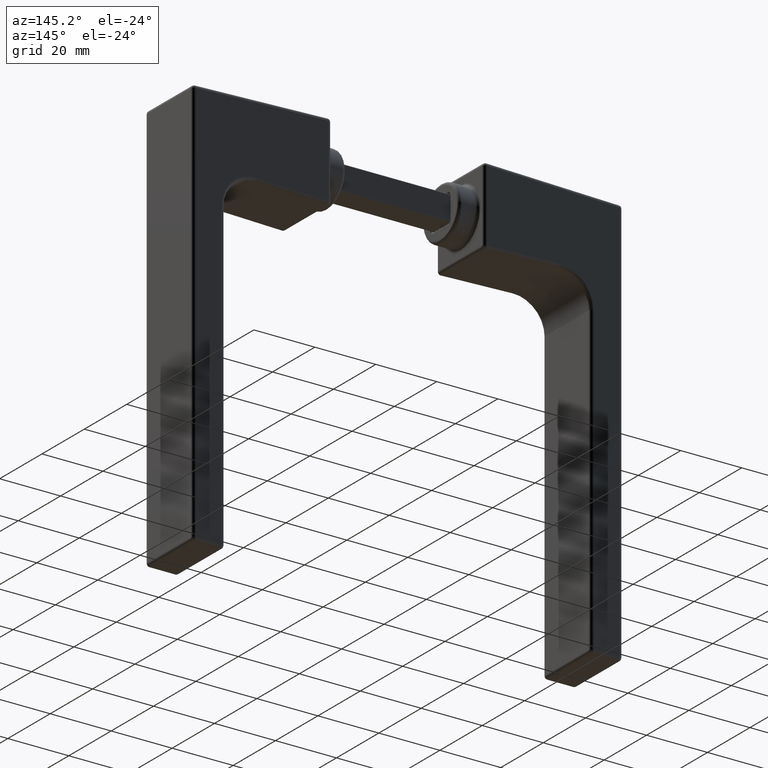
[diagram: clean part render]
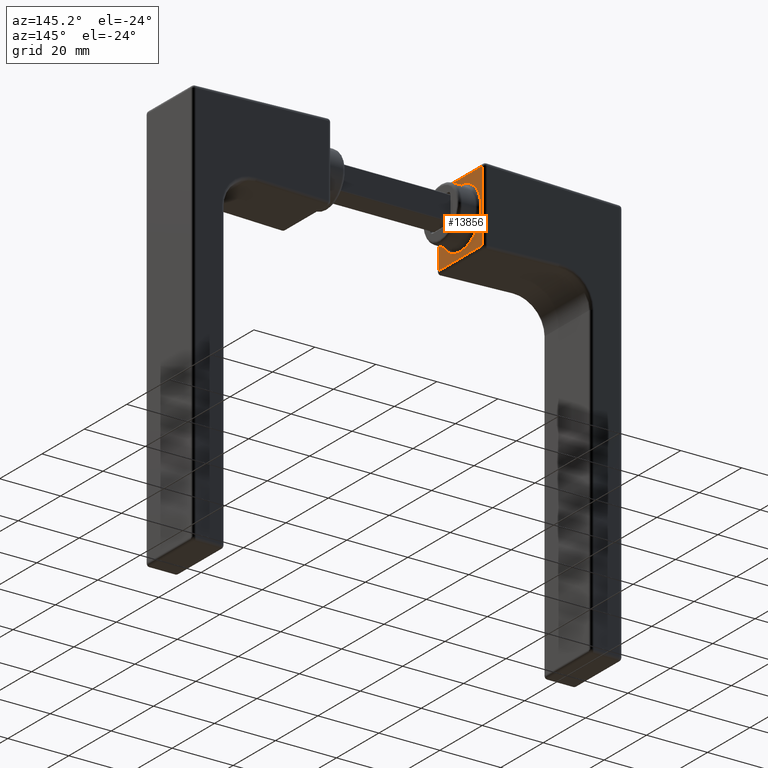
[diagram: same view with one face highlighted and labeled with its STEP entity id]
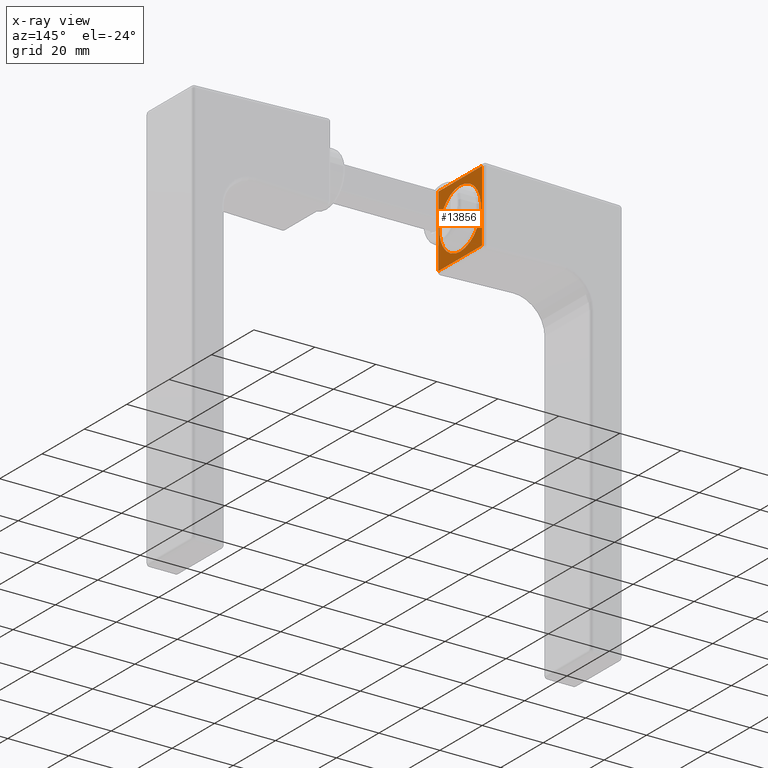
[diagram: x-ray of the same camera — body ghosted, the highlighted face saturated]
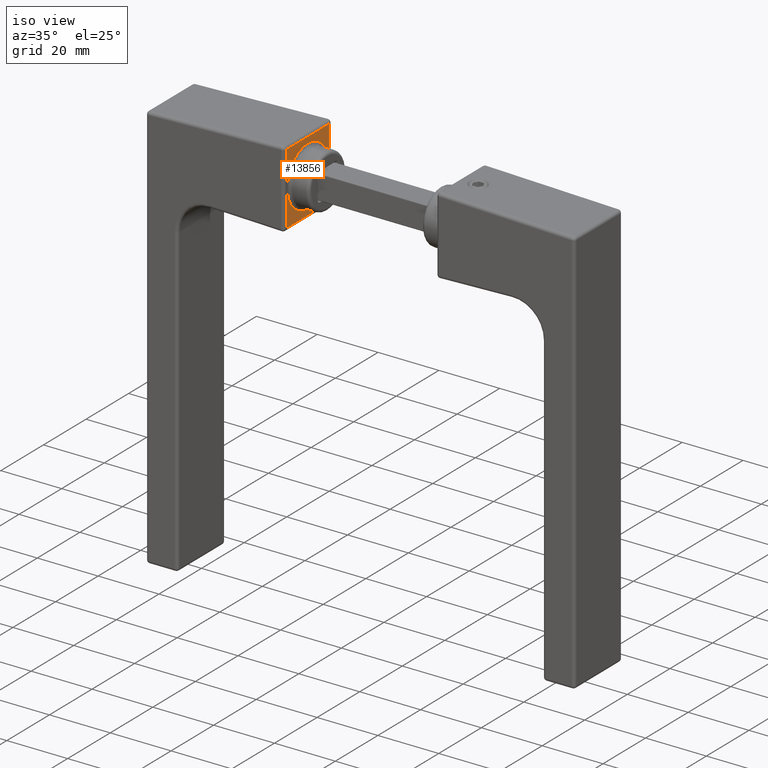
[diagram: same view with one face highlighted and labeled with its STEP entity id]
A machine part, auxiliary view. The second image highlights one B-rep face of the part: STEP entity #13856.
The next image is the same camera in x-ray: the body ghosted, the highlighted face saturated — about 0% of this face is hidden behind the body in this view.
A second angle (iso view) of the same face is appended — the face is thin or edge-on in the first view.
In plain terms, the highlighted planar face has unit normal (-1, 0, 0).
Its self-contained STEP definition (entity closure, byte-faithful):
#159 = DIRECTION ( 'NONE',  ( -1.000000000000000000, 0.000000000000000000, 0.000000000000000000 ) ) ;
#242 = EDGE_CURVE ( 'NONE', #12637, #14758, #7716, .T. ) ;
#309 = DIRECTION ( 'NONE',  ( 0.000000000000000000, 0.000000000000000000, 1.000000000000000000 ) ) ;
#684 = EDGE_CURVE ( 'NONE', #943, #943, #6579, .T. ) ;
#819 = CARTESIAN_POINT ( 'NONE',  ( 4.987329993433320396E-15, 0.000000000000000000, 0.000000000000000000 ) ) ;
#943 = VERTEX_POINT ( 'NONE', #3148 ) ;
#2151 = DIRECTION ( 'NONE',  ( -0.000000000000000000, 1.000000000000000000, -0.000000000000000000 ) ) ;
#2186 = DIRECTION ( 'NONE',  ( -0.000000000000000000, -0.000000000000000000, 1.000000000000000000 ) ) ;
#2252 = VECTOR ( 'NONE', #10289, 1000.000000000000000 ) ;
#2592 = VERTEX_POINT ( 'NONE', #10943 ) ;
#2711 = EDGE_CURVE ( 'NONE', #7563, #2592, #8607, .T. ) ;
#3148 = CARTESIAN_POINT ( 'NONE',  ( 4.987329993433320396E-15, 0.000000000000000000, 9.750000000000001776 ) ) ;
#3389 = CARTESIAN_POINT ( 'NONE',  ( 4.711518916537150582E-15, 11.25000000000000000, 11.71917024226190307 ) ) ;
#3978 = ORIENTED_EDGE ( 'NONE', *, *, #10625, .T. ) ;
#4559 = CARTESIAN_POINT ( 'NONE',  ( 4.711518916537150582E-15, 10.24999999999999822, -11.71917024226190307 ) ) ;
#4560 = FACE_BOUND ( 'NONE', #9770, .T. ) ;
#4606 = DIRECTION ( 'NONE',  ( 0.000000000000000000, -1.000000000000000000, 0.000000000000000000 ) ) ;
#4657 = ORIENTED_EDGE ( 'NONE', *, *, #6442, .T. ) ;
#4661 = VECTOR ( 'NONE', #4606, 1000.000000000000000 ) ;
#4868 = CARTESIAN_POINT ( 'NONE',  ( 4.711518916537150582E-15, -10.24999999999999822, -11.71917024226190307 ) ) ;
#5036 = LINE ( 'NONE', #3389, #4661 ) ;
#5213 = VECTOR ( 'NONE', #2186, 1000.000000000000000 ) ;
#5282 = ORIENTED_EDGE ( 'NONE', *, *, #242, .T. ) ;
#5406 = ORIENTED_EDGE ( 'NONE', *, *, #2711, .T. ) ;
#6442 = EDGE_CURVE ( 'NONE', #2592, #12637, #5036, .T. ) ;
#6444 = FACE_OUTER_BOUND ( 'NONE', #14477, .T. ) ;
#6579 = CIRCLE ( 'NONE', #11264, 9.750000000000001776 ) ;
#6647 = CARTESIAN_POINT ( 'NONE',  ( 4.711518916537150582E-15, -10.24999999999999822, -12.75000000000000178 ) ) ;
#6945 = CARTESIAN_POINT ( 'NONE',  ( 4.711518916537150582E-15, 11.25000000000000000, -11.71917024226190307 ) ) ;
#7556 = PLANE ( 'NONE',  #8438 ) ;
#7563 = VERTEX_POINT ( 'NONE', #4559 ) ;
#7716 = LINE ( 'NONE', #6647, #2252 ) ;
#8438 = AXIS2_PLACEMENT_3D ( 'NONE', #9919, #159, #309 ) ;
#8607 = LINE ( 'NONE', #14046, #5213 ) ;
#9081 = DIRECTION ( 'NONE',  ( 0.000000000000000000, 0.000000000000000000, 1.000000000000000000 ) ) ;
#9770 = EDGE_LOOP ( 'NONE', ( #14069 ) ) ;
#9919 = CARTESIAN_POINT ( 'NONE',  ( 4.711518916537150582E-15, 11.25000000000000000, -12.75000000000000178 ) ) ;
#10289 = DIRECTION ( 'NONE',  ( 0.000000000000000000, 0.000000000000000000, -1.000000000000000000 ) ) ;
#10625 = EDGE_CURVE ( 'NONE', #14758, #7563, #12178, .T. ) ;
#10943 = CARTESIAN_POINT ( 'NONE',  ( 4.711518916537150582E-15, 10.24999999999999822, 11.71917024226190307 ) ) ;
#11264 = AXIS2_PLACEMENT_3D ( 'NONE', #819, #11628, #9081 ) ;
#11628 = DIRECTION ( 'NONE',  ( -1.000000000000000000, 0.000000000000000000, 0.000000000000000000 ) ) ;
#12178 = LINE ( 'NONE', #6945, #12355 ) ;
#12355 = VECTOR ( 'NONE', #2151, 1000.000000000000000 ) ;
#12637 = VERTEX_POINT ( 'NONE', #15353 ) ;
#13856 = ADVANCED_FACE ( 'NONE', ( #4560, #6444 ), #7556, .F. ) ;
#14046 = CARTESIAN_POINT ( 'NONE',  ( 4.711518916537150582E-15, 10.24999999999999822, -12.75000000000000178 ) ) ;
#14069 = ORIENTED_EDGE ( 'NONE', *, *, #684, .T. ) ;
#14477 = EDGE_LOOP ( 'NONE', ( #5282, #3978, #5406, #4657 ) ) ;
#14758 = VERTEX_POINT ( 'NONE', #4868 ) ;
#15353 = CARTESIAN_POINT ( 'NONE',  ( 4.711518916537150582E-15, -10.24999999999999822, 11.71917024226190307 ) ) ;